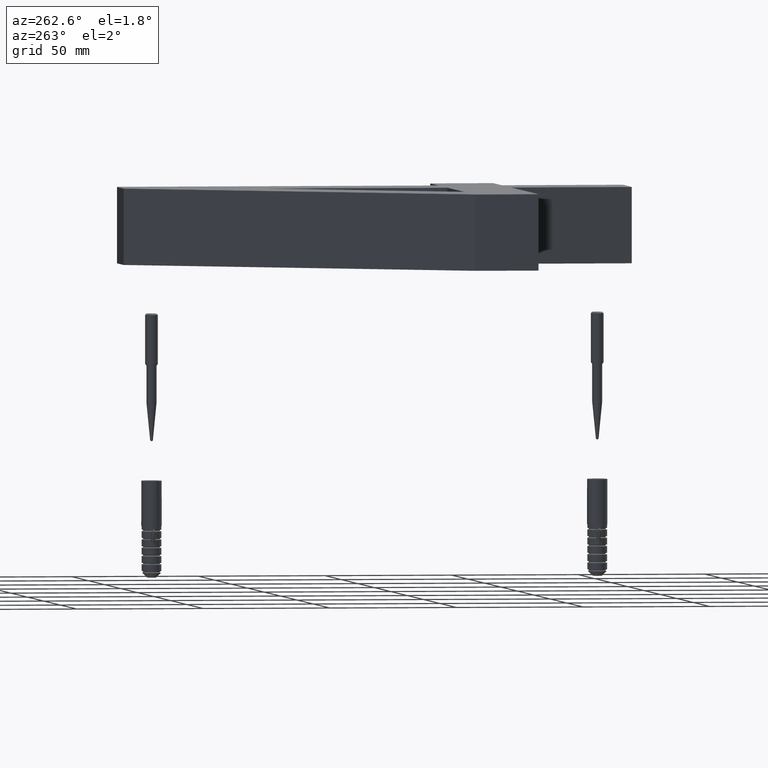
[diagram: clean part render]
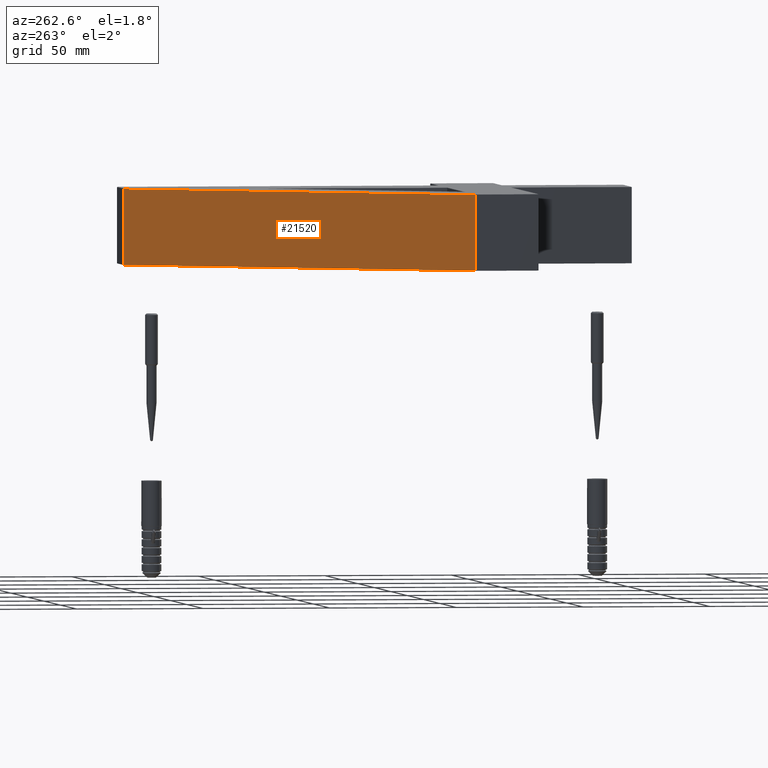
[diagram: same view with one face highlighted and labeled with its STEP entity id]
A machine part, auxiliary view. The second image highlights one B-rep face of the part: STEP entity #21520.
In plain terms, the highlighted planar face has unit normal (0.8164, -0.5776, 0).
Its self-contained STEP definition (entity closure, byte-faithful):
#610 = DIRECTION ( 'NONE',  ( 0.8163546677313505700, -0.5775509124512197000, 0.0000000000000000000 ) ) ;
#1487 = CARTESIAN_POINT ( 'NONE',  ( -97.67038809144020200, 72.87878787878739200, -28.00000000000000000 ) ) ;
#2353 = CARTESIAN_POINT ( 'NONE',  ( -97.67038809144020200, 72.87878787878739200, 2.000000000000000000 ) ) ;
#2585 = DIRECTION ( 'NONE',  ( -0.0000000000000000000, -0.0000000000000000000, -1.000000000000000000 ) ) ;
#3205 = VERTEX_POINT ( 'NONE', #3543 ) ;
#3378 = EDGE_CURVE ( 'NONE', #9479, #7291, #13255, .T. ) ;
#3543 = CARTESIAN_POINT ( 'NONE',  ( -97.67038809144020200, 72.87878787878739200, 1.750000000000000000 ) ) ;
#6179 = DIRECTION ( 'NONE',  ( 0.5775509124512195900, 0.8163546677313505700, 0.0000000000000000000 ) ) ;
#6560 = EDGE_CURVE ( 'NONE', #3205, #9479, #12341, .T. ) ;
#6632 = DIRECTION ( 'NONE',  ( -0.0000000000000000000, -0.0000000000000000000, -1.000000000000000000 ) ) ;
#7071 = CARTESIAN_POINT ( 'NONE',  ( -97.67038809144020200, 72.87878787878739200, 2.000000000000000000 ) ) ;
#7200 = VERTEX_POINT ( 'NONE', #1487 ) ;
#7291 = VERTEX_POINT ( 'NONE', #15321 ) ;
#9202 = DIRECTION ( 'NONE',  ( 0.5775509124512195900, 0.8163546677313504600, 0.0000000000000000000 ) ) ;
#9479 = VERTEX_POINT ( 'NONE', #13176 ) ;
#11536 = CARTESIAN_POINT ( 'NONE',  ( -97.67038809144020200, 72.87878787878739200, 1.750000000000000000 ) ) ;
#11995 = VECTOR ( 'NONE', #18224, 999.9999999999998900 ) ;
#12341 = LINE ( 'NONE', #11536, #11995 ) ;
#13034 = AXIS2_PLACEMENT_3D ( 'NONE', #7071, #610, #9202 ) ;
#13161 = LINE ( 'NONE', #2353, #26470 ) ;
#13176 = CARTESIAN_POINT ( 'NONE',  ( -7.735247208933204300, 199.9999999999996900, 1.750000000000000000 ) ) ;
#13255 = LINE ( 'NONE', #25897, #15252 ) ;
#13503 = FACE_OUTER_BOUND ( 'NONE', #23176, .T. ) ;
#15252 = VECTOR ( 'NONE', #2585, 1000.000000000000000 ) ;
#15321 = CARTESIAN_POINT ( 'NONE',  ( -7.735247208933191000, 199.9999999999996900, -28.00000000000000000 ) ) ;
#18224 = DIRECTION ( 'NONE',  ( 0.5775509124512195900, 0.8163546677313505700, -0.0000000000000000000 ) ) ;
#19131 = ORIENTED_EDGE ( 'NONE', *, *, #3378, .T. ) ;
#21006 = ORIENTED_EDGE ( 'NONE', *, *, #21452, .F. ) ;
#21071 = CARTESIAN_POINT ( 'NONE',  ( -99.45231568326153100, 70.36007502459290200, -28.00000000000000000 ) ) ;
#21351 = ORIENTED_EDGE ( 'NONE', *, *, #6560, .T. ) ;
#21452 = EDGE_CURVE ( 'NONE', #3205, #7200, #13161, .T. ) ;
#21520 = ADVANCED_FACE ( 'NONE', ( #13503 ), #26032, .F. ) ;
#21626 = EDGE_CURVE ( 'NONE', #7200, #7291, #27443, .T. ) ;
#22428 = VECTOR ( 'NONE', #6179, 999.9999999999998900 ) ;
#23176 = EDGE_LOOP ( 'NONE', ( #21006, #21351, #19131, #27238 ) ) ;
#25897 = CARTESIAN_POINT ( 'NONE',  ( -7.735247208933204300, 199.9999999999996900, 2.000000000000000000 ) ) ;
#26032 = PLANE ( 'NONE',  #13034 ) ;
#26470 = VECTOR ( 'NONE', #6632, 1000.000000000000000 ) ;
#27238 = ORIENTED_EDGE ( 'NONE', *, *, #21626, .F. ) ;
#27443 = LINE ( 'NONE', #21071, #22428 ) ;